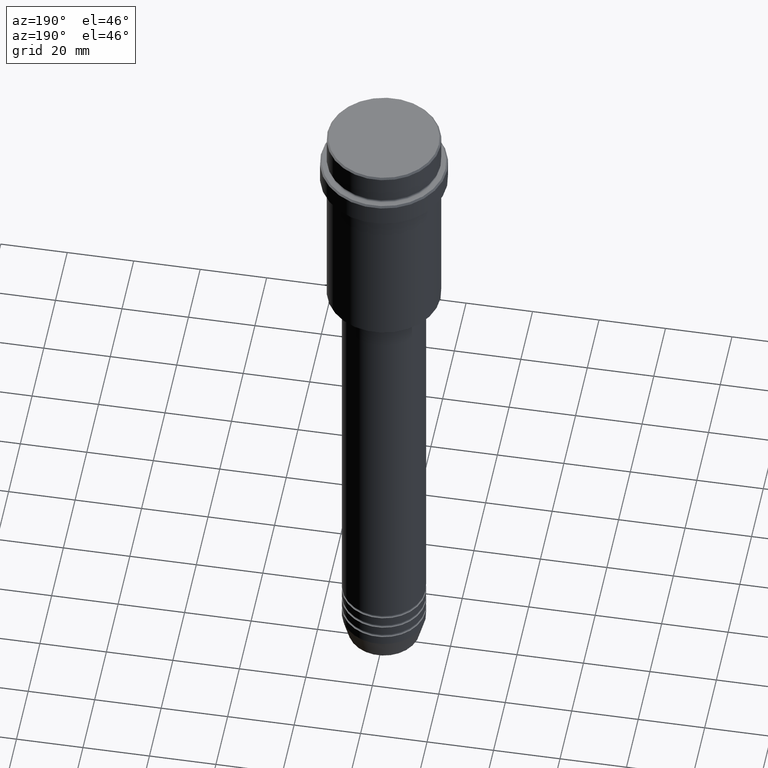
[diagram: clean part render]
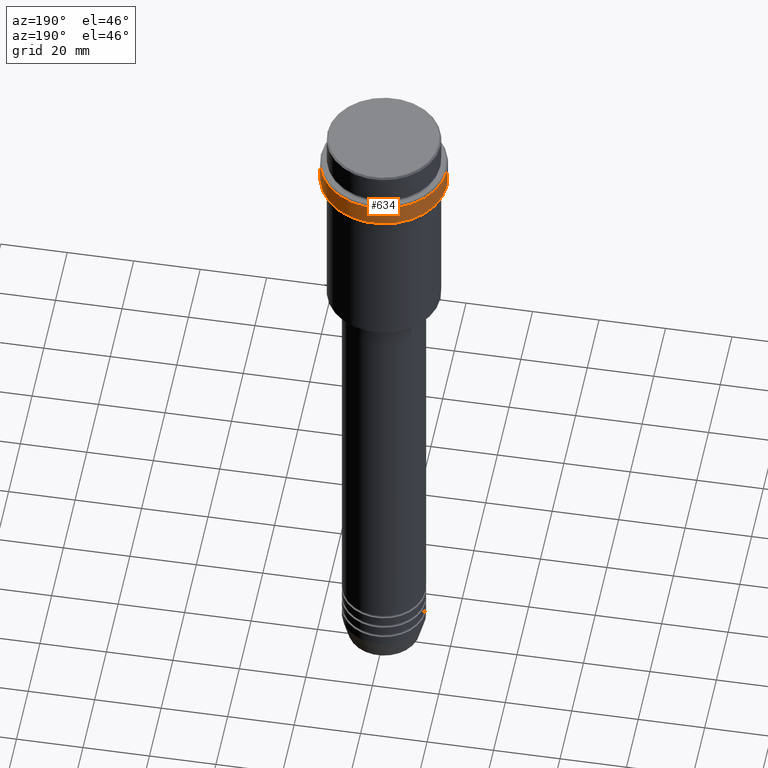
[diagram: same view with one face highlighted and labeled with its STEP entity id]
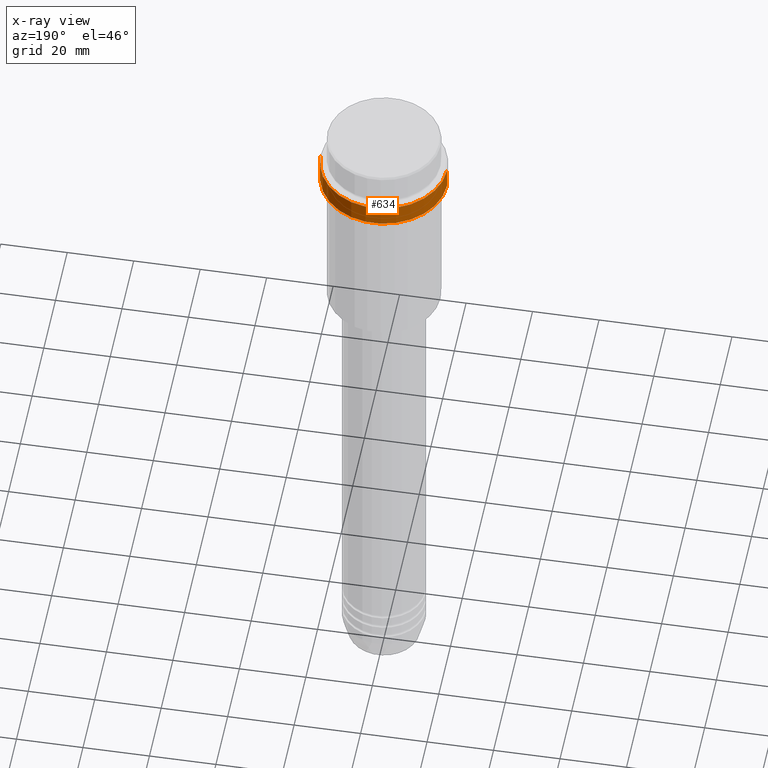
[diagram: x-ray of the same camera — body ghosted, the highlighted face saturated]
A machine part, auxiliary view. The second image highlights one B-rep face of the part: STEP entity #634.
The next image is the same camera in x-ray: the body ghosted, the highlighted face saturated — about 0% of this face is hidden behind the body in this view.
In plain terms, the highlighted cylindrical surface (partial cylindrical patch) has radius 19 mm, axis along (-0, -0, 1).
Its self-contained STEP definition (entity closure, byte-faithful):
#42 = CIRCLE ( 'NONE', #669, 18.99999999999997158 ) ;
#53 = CARTESIAN_POINT ( 'NONE',  ( 18.99999999999997158, 0.000000000000000000, -17.00000000000000000 ) ) ;
#152 = DIRECTION ( 'NONE',  ( -0.000000000000000000, -0.000000000000000000, 1.000000000000000000 ) ) ;
#167 = CARTESIAN_POINT ( 'NONE',  ( 0.000000000000000000, 0.000000000000000000, -10.49999999999998934 ) ) ;
#170 = CARTESIAN_POINT ( 'NONE',  ( 0.000000000000000000, 0.000000000000000000, -17.00000000000000000 ) ) ;
#181 = LINE ( 'NONE', #622, #748 ) ;
#215 = VERTEX_POINT ( 'NONE', #1015 ) ;
#223 = VERTEX_POINT ( 'NONE', #1128 ) ;
#279 = DIRECTION ( 'NONE',  ( 1.000000000000000000, 0.000000000000000000, 0.000000000000000000 ) ) ;
#287 = DIRECTION ( 'NONE',  ( 0.000000000000000000, 0.000000000000000000, -1.000000000000000000 ) ) ;
#336 = AXIS2_PLACEMENT_3D ( 'NONE', #650, #1069, #661 ) ;
#350 = EDGE_CURVE ( 'NONE', #447, #215, #181, .T. ) ;
#379 = ORIENTED_EDGE ( 'NONE', *, *, #1214, .T. ) ;
#447 = VERTEX_POINT ( 'NONE', #757 ) ;
#460 = ORIENTED_EDGE ( 'NONE', *, *, #764, .T. ) ;
#465 = EDGE_CURVE ( 'NONE', #787, #223, #658, .T. ) ;
#517 = FACE_OUTER_BOUND ( 'NONE', #1199, .T. ) ;
#569 = CARTESIAN_POINT ( 'NONE',  ( 18.99999999999997158, 0.000000000000000000, 0.000000000000000000 ) ) ;
#605 = DIRECTION ( 'NONE',  ( 1.000000000000000000, 0.000000000000000000, 0.000000000000000000 ) ) ;
#622 = CARTESIAN_POINT ( 'NONE',  ( -18.99999999999997158, 2.326828918379967420E-15, 0.000000000000000000 ) ) ;
#633 = DIRECTION ( 'NONE',  ( -0.000000000000000000, -0.000000000000000000, 1.000000000000000000 ) ) ;
#634 = ADVANCED_FACE ( 'NONE', ( #517 ), #643, .T. ) ;
#643 = CYLINDRICAL_SURFACE ( 'NONE', #336, 18.99999999999997158 ) ;
#650 = CARTESIAN_POINT ( 'NONE',  ( 0.000000000000000000, 0.000000000000000000, 0.000000000000000000 ) ) ;
#658 = LINE ( 'NONE', #569, #1257 ) ;
#661 = DIRECTION ( 'NONE',  ( 1.000000000000000000, 0.000000000000000000, 0.000000000000000000 ) ) ;
#669 = AXIS2_PLACEMENT_3D ( 'NONE', #167, #287, #605 ) ;
#748 = VECTOR ( 'NONE', #633, 1000.000000000000000 ) ;
#757 = CARTESIAN_POINT ( 'NONE',  ( -18.99999999999997158, 2.326828918379967420E-15, -17.00000000000000000 ) ) ;
#764 = EDGE_CURVE ( 'NONE', #215, #223, #42, .T. ) ;
#787 = VERTEX_POINT ( 'NONE', #53 ) ;
#824 = ORIENTED_EDGE ( 'NONE', *, *, #350, .T. ) ;
#892 = ORIENTED_EDGE ( 'NONE', *, *, #465, .F. ) ;
#1015 = CARTESIAN_POINT ( 'NONE',  ( -18.99999999999997158, 2.326828918379967420E-15, -10.49999999999998934 ) ) ;
#1069 = DIRECTION ( 'NONE',  ( -0.000000000000000000, -0.000000000000000000, 1.000000000000000000 ) ) ;
#1112 = DIRECTION ( 'NONE',  ( -0.000000000000000000, -0.000000000000000000, 1.000000000000000000 ) ) ;
#1128 = CARTESIAN_POINT ( 'NONE',  ( 18.99999999999997158, 0.000000000000000000, -10.49999999999998934 ) ) ;
#1199 = EDGE_LOOP ( 'NONE', ( #379, #824, #460, #892 ) ) ;
#1214 = EDGE_CURVE ( 'NONE', #787, #447, #1305, .T. ) ;
#1257 = VECTOR ( 'NONE', #1112, 1000.000000000000000 ) ;
#1305 = CIRCLE ( 'NONE', #1331, 18.99999999999997158 ) ;
#1331 = AXIS2_PLACEMENT_3D ( 'NONE', #170, #152, #279 ) ;